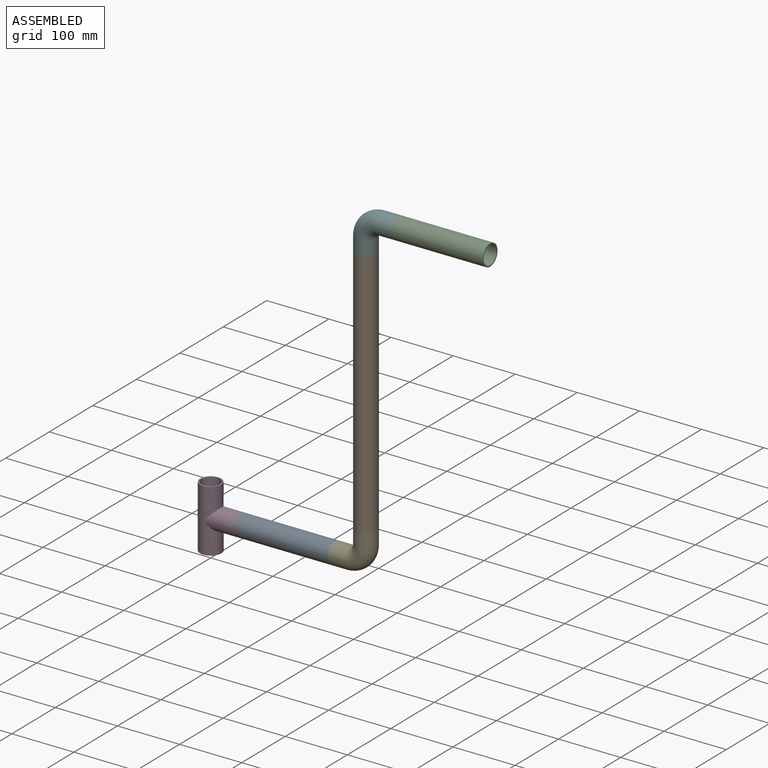
[diagram: assembled view]
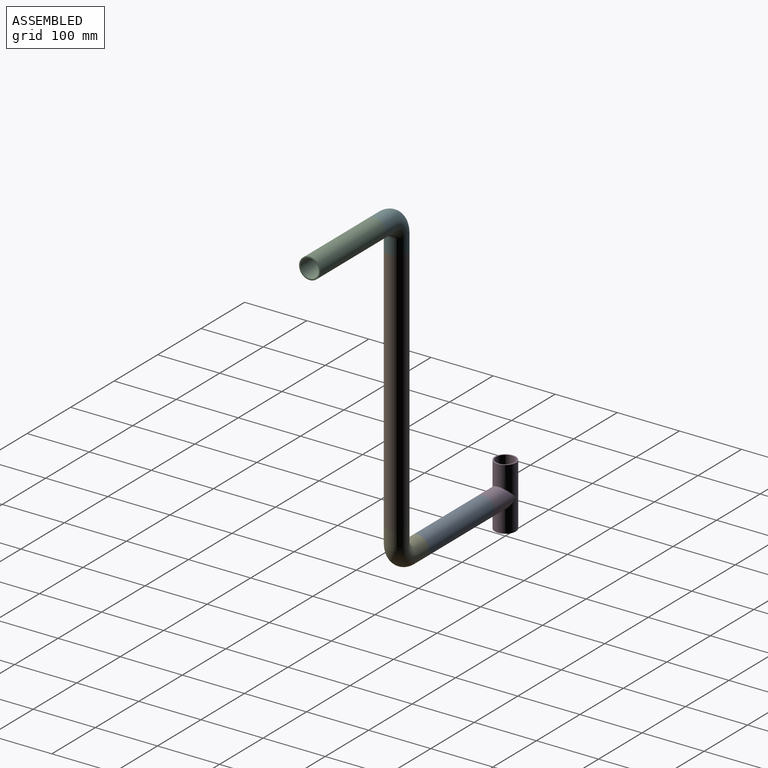
[diagram: assembled view, second angle]
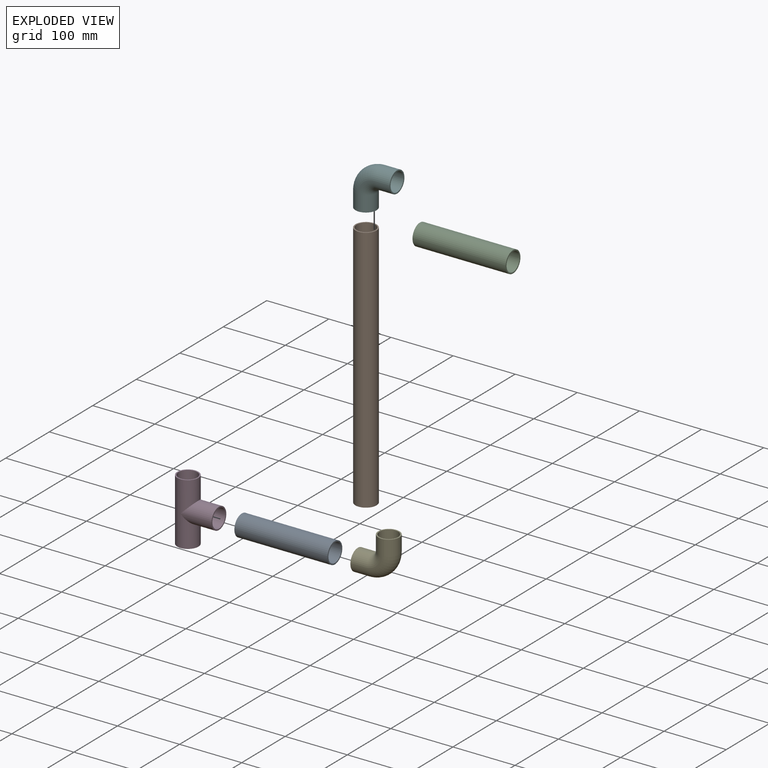
[diagram: exploded view]
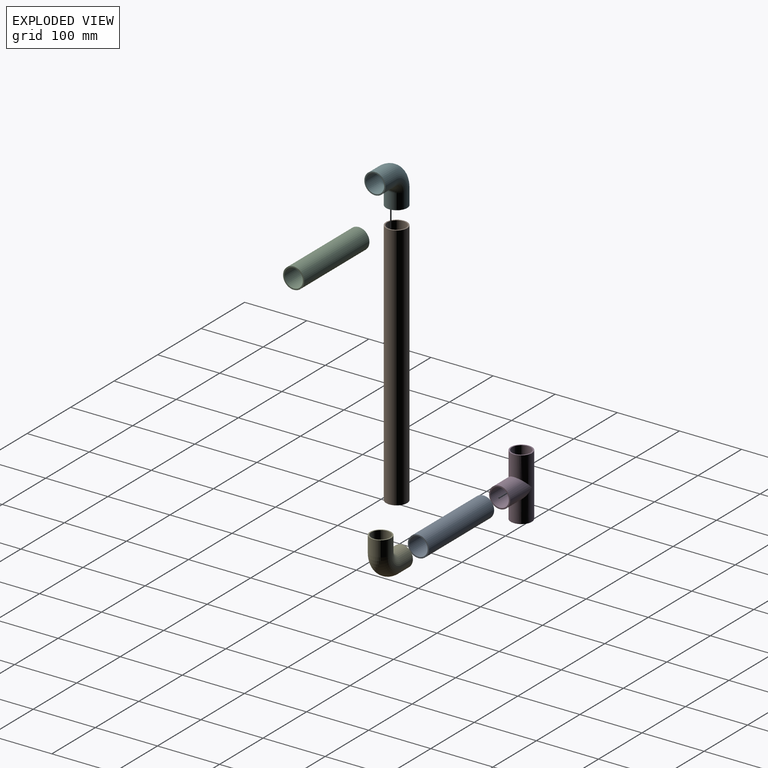
[diagram: exploded view, second angle]
ASSEMBLY  parts=6 mates=5
PART A: 4 faces, bbox 34x34x150 mm
  f0: cylinder r=15mm len=150mm, axis (0,0,-1), area 14137.2mm2, adj f2,f3
  f1: cylinder r=17mm len=150mm, axis (0,0,-1), area 16022.1mm2, adj f2,f3
  f2: plane 34x34mm, normal (0,0,1), area 201.1mm2, adj f0,f1
  f3: plane 34x34mm, normal (0,0,-1), area 201.1mm2, adj f0,f1
PART B: 4 faces, bbox 34x34x400 mm
  f0: cylinder r=15mm len=400mm, axis (0,0,-1), area 37699.1mm2, adj f2,f3
  f1: cylinder r=17mm len=400mm, axis (0,0,-1), area 42725.7mm2, adj f2,f3
  f2: plane 34x34mm, normal (0,0,1), area 201.1mm2, adj f0,f1
  f3: plane 34x34mm, normal (0,0,-1), area 201.1mm2, adj f0,f1
PART C: same geometry as A
PART D: 7 faces, bbox 67x34x100 mm
  f0: cylinder r=15mm len=100mm, axis (0,0,1), area 8524.8mm2, adj f2,f3,f6
  f1: cylinder r=17mm len=100mm, axis (0,0,-1), area 9525.4mm2, adj f2,f3,f4
  f2: plane 34x34mm, normal (0,0,1), area 201.1mm2, adj f0,f1
  f3: plane 34x34mm, normal (0,0,-1), area 201.1mm2, adj f0,f1
  f4: cylinder r=17mm len=50mm, axis (-1,0,0), area 4184.7mm2, adj f1,f5
  f5: plane 34x34mm, normal (1,0,0), area 201.1mm2, adj f4,f6
  f6: cylinder r=15mm len=50mm, axis (1,0,0), area 3812.4mm2, adj f0,f5
PART E: 8 faces, bbox 70.5x34x70.5 mm
  f0: cylinder r=15mm len=30mm, axis (0,0,1), area 2356.2mm2, adj f1,f3
  f1: torus R=25mm, axis (0,1,0), area 3701.1mm2, adj f0,f2
  f2: cylinder r=15mm len=30mm, axis (1,0,0), area 2356.2mm2, adj f1,f4
  f3: plane 34x34mm, normal (0,0,-1), area 201.1mm2, adj f0,f5
  f4: plane 34x34mm, normal (1,0,0), area 201.1mm2, adj f2,f7
  f5: cylinder r=17mm len=34mm, axis (0,0,1), area 2670.4mm2, adj f3,f6
  f6: torus R=25mm, axis (0,1,0), area 4194.6mm2, adj f5,f7
  f7: cylinder r=17mm len=34mm, axis (1,0,0), area 2670.4mm2, adj f4,f6
PART F: same geometry as E
PLACE A rot(axis=(0.71,0,-0.71),180deg) t=(200,0,0)mm
PLACE B t=(250,0,50)mm
PLACE C rot(axis=(0.71,0,-0.71),180deg) t=(450,0,500)mm
PLACE D at identity fixed
PLACE E rot(axis=(0,1,0),180deg) t=(250,0,50)mm
PLACE F t=(250,0,450)mm
MATE fastened D.f4 <-> A.f1  axis (1,0,0) through (50,0,0)mm
MATE fastened B.f1 <-> F.f5  axis (0,0,1) through (250,0,450)mm
MATE fastened A.f1 <-> E.f7  axis (1,0,0) through (200,0,0)mm
MATE fastened B.f1 <-> E.f5  axis (0,0,-1) through (250,0,50)mm
MATE fastened F.f7 <-> C.f1  axis (1,0,0) through (300,0,500)mm
